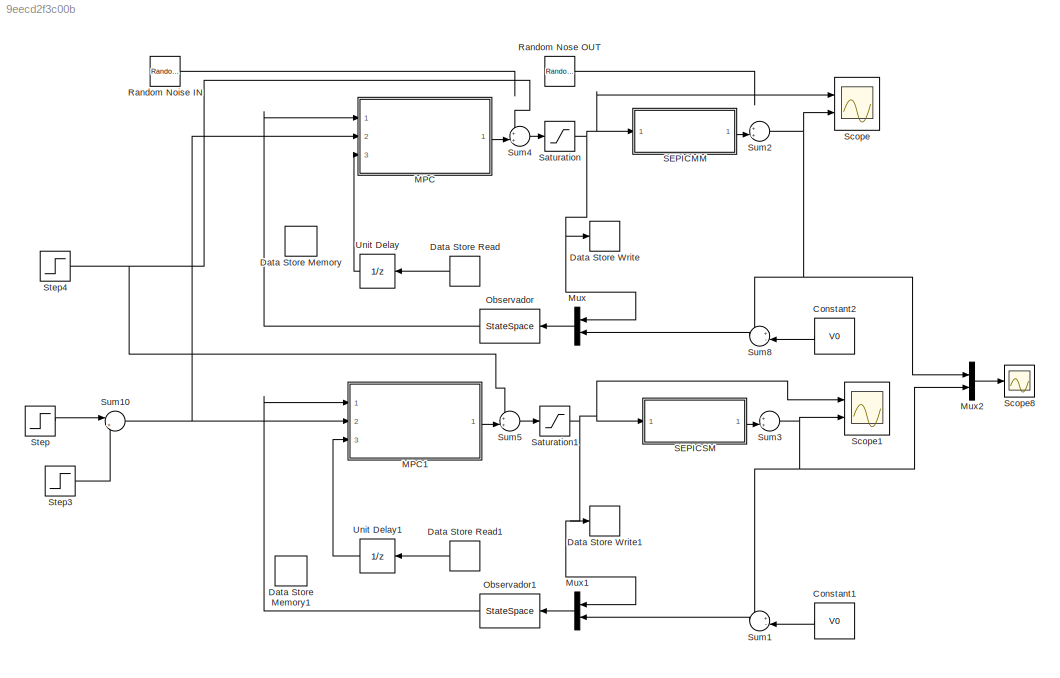
MODEL slx_9eecd2f3c00b
KIND model
CONFIG AbsTol = auto
CONFIG FixedStep = auto
CONFIG MaxStep = auto
CONFIG MinStep = auto
CONFIG RelTol = 1e-3
CONFIG SampleTimeConstraint = Unconstrained
CONFIG Solver = ode45
CONFIG SolverMode = Auto
CONFIG SolverName = ode45
CONFIG StartTime = 0.0
CONFIG StopTime = 0.015
BLOCK [Constant] Constant1
  Value = V0
BLOCK [Constant] Constant2
  Value = V0
BLOCK [DataStoreMemory] Data Store Memory
  DataStoreName = uk
  ReadBeforeWriteMsg = warning
  WriteAfterReadMsg = warning
  WriteAfterWriteMsg = warning
BLOCK [DataStoreMemory] Data Store Memory1
  DataStoreName = uk1
  ReadBeforeWriteMsg = warning
  WriteAfterReadMsg = warning
  WriteAfterWriteMsg = warning
BLOCK [DataStoreRead] Data Store Read
  DataStoreName = uk
  Ports = [0, 1]
BLOCK [DataStoreRead] Data Store Read1
  DataStoreName = uk1
  Ports = [0, 1]
BLOCK [DataStoreWrite] Data Store Write
  DataStoreName = uk
  DialogController = Simulink.DDGSource
  Ports = [1]
BLOCK [DataStoreWrite] Data Store Write1
  DataStoreName = uk1
  Ports = [1]
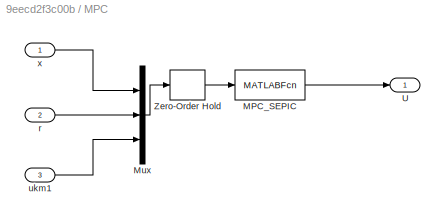
BLOCK [SubSystem] MPC
  Ports = [3, 1]
  RequestExecContextInheritance = off
BLOCK [MATLABFcn] MPC/MPC_SEPIC
  MATLABFcn = MPC_SEPIC
  Ports = [1, 1]
BLOCK [Mux] MPC/Mux
  DisplayOption = bar
  Inputs = 3
  Ports = [3, 1]
BLOCK [Outport] MPC/U
  IconDisplay = Port number
BLOCK [ZeroOrderHold] MPC/Zero-Order Hold
  SampleTime = Ts
BLOCK [Inport] MPC/r
  IconDisplay = Port number
  Port = 2
BLOCK [Inport] MPC/ukm1
  IconDisplay = Port number
  Port = 3
BLOCK [Inport] MPC/x
  IconDisplay = Port number
  PortDimensions = 4
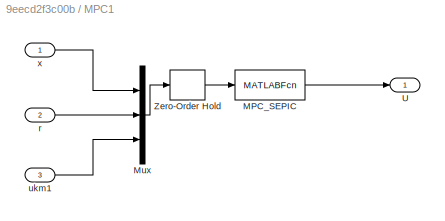
BLOCK [SubSystem] MPC1
  Ports = [3, 1]
  RequestExecContextInheritance = off
BLOCK [MATLABFcn] MPC1/MPC_SEPIC
  MATLABFcn = MPC_SEPIC
  Ports = [1, 1]
BLOCK [Mux] MPC1/Mux
  DisplayOption = bar
  Inputs = 3
  Ports = [3, 1]
BLOCK [Outport] MPC1/U
  IconDisplay = Port number
BLOCK [ZeroOrderHold] MPC1/Zero-Order Hold
  SampleTime = Ts
BLOCK [Inport] MPC1/r
  IconDisplay = Port number
  Port = 2
BLOCK [Inport] MPC1/ukm1
  IconDisplay = Port number
  Port = 3
BLOCK [Inport] MPC1/x
  IconDisplay = Port number
  PortDimensions = 4
BLOCK [Mux] Mux
  DisplayOption = bar
  Inputs = 2
  Ports = [2, 1]
BLOCK [Mux] Mux1
  DisplayOption = bar
  Inputs = 2
  Ports = [2, 1]
BLOCK [Mux] Mux2
  DisplayOption = bar
  Inputs = 2
  Ports = [2, 1]
BLOCK [StateSpace] Observador
  A = Ao
  B = Bo
  C = Co
  D = Do
  Ports = [1, 1]
  X0 = 0
BLOCK [StateSpace] Observador1
  A = Ao
  B = Bo
  C = Co
  D = Do
  Ports = [1, 1]
  X0 = 0
BLOCK [RandomNumber] Random Noise IN
  SampleTime = 0.0001
  Variance = .0001
BLOCK [RandomNumber] Random Nose OUT
  SampleTime = 0.0001
  Variance = 0.001
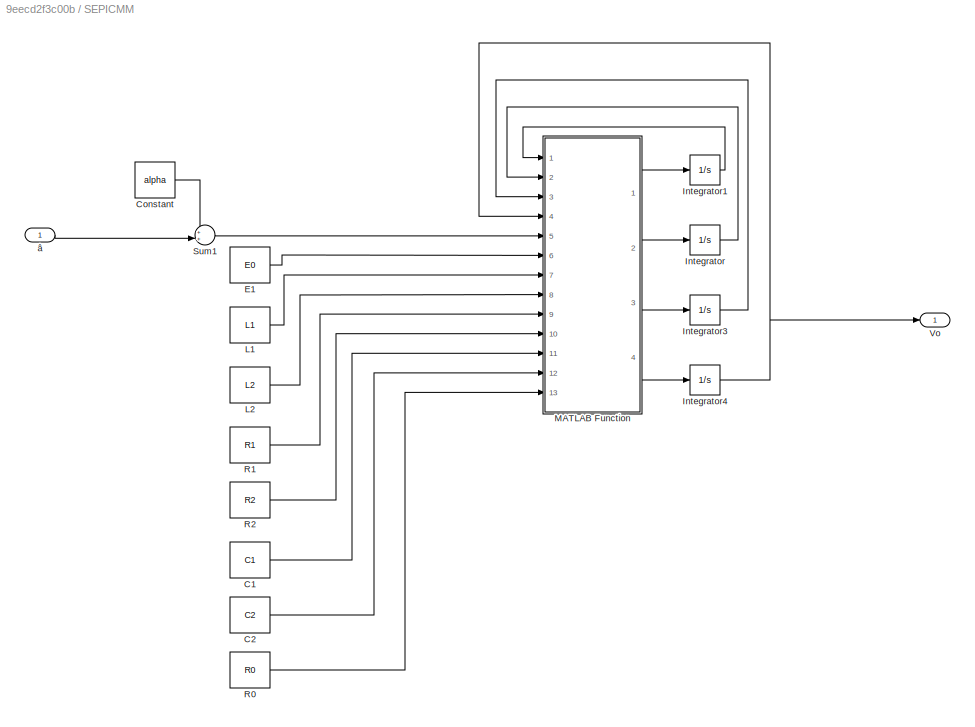
BLOCK [SubSystem] SEPICMM 
  Ports = [1, 1]
  RequestExecContextInheritance = off
BLOCK [Constant] SEPICMM /C1
  Value = C1
BLOCK [Constant] SEPICMM /C2
  Value = C2
BLOCK [Constant] SEPICMM /Constant
  Value = alpha
BLOCK [Constant] SEPICMM /E1
  Value = E0
BLOCK [Integrator] SEPICMM /Integrator
  Ports = [1, 1]
BLOCK [Integrator] SEPICMM /Integrator1
  Ports = [1, 1]
BLOCK [Integrator] SEPICMM /Integrator3
  Ports = [1, 1]
BLOCK [Integrator] SEPICMM /Integrator4
  Ports = [1, 1]
BLOCK [Constant] SEPICMM /L1
  Value = L1
BLOCK [Constant] SEPICMM /L2
  Value = L2
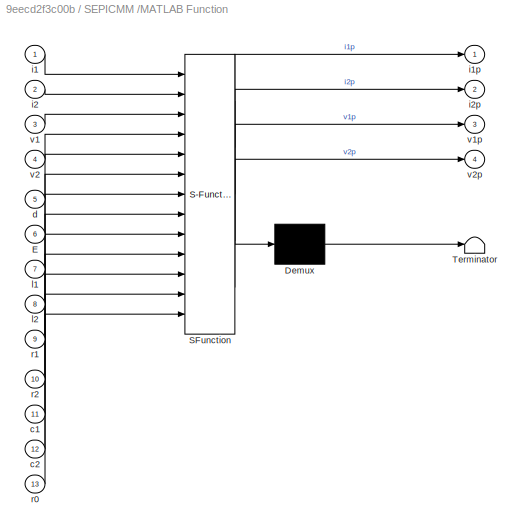
BLOCK [SubSystem] SEPICMM /MATLAB Function
  ErrorFcn = Stateflow.Translate.translate
  PermitHierarchicalResolution = ExplicitOnly
  Ports = [13, 4]
  RequestExecContextInheritance = off
  SFBlockType = MATLAB Function
  TreatAsAtomicUnit = on
BLOCK [Demux] SEPICMM /MATLAB Function/ Demux 
  Outputs = 1
  Ports = [1, 1]
BLOCK [S-Function] SEPICMM /MATLAB Function/ SFunction 
  EnableBusSupport = on
  FunctionName = sf_sfun
  PortCounts = [13 5]
  Ports = [13, 5]
  Tag = Stateflow S-Function MPCii_sepicmm_vs_sepicsm_noise 2
BLOCK [Terminator] SEPICMM /MATLAB Function/ Terminator 
BLOCK [Inport] SEPICMM /MATLAB Function/E
  IconDisplay = Port number
  Port = 6
BLOCK [Inport] SEPICMM /MATLAB Function/c1
  IconDisplay = Port number
  Port = 11
BLOCK [Inport] SEPICMM /MATLAB Function/c2
  IconDisplay = Port number
  Port = 12
BLOCK [Inport] SEPICMM /MATLAB Function/d
  IconDisplay = Port number
  Port = 5
BLOCK [Inport] SEPICMM /MATLAB Function/i1
  IconDisplay = Port number
BLOCK [Outport] SEPICMM /MATLAB Function/i1p
  IconDisplay = Port number
BLOCK [Inport] SEPICMM /MATLAB Function/i2
  IconDisplay = Port number
  Port = 2
BLOCK [Outport] SEPICMM /MATLAB Function/i2p
  IconDisplay = Port number
  Port = 2
BLOCK [Inport] SEPICMM /MATLAB Function/l1
  IconDisplay = Port number
  Port = 7
BLOCK [Inport] SEPICMM /MATLAB Function/l2
  IconDisplay = Port number
  Port = 8
BLOCK [Inport] SEPICMM /MATLAB Function/r0
  IconDisplay = Port number
  Port = 13
BLOCK [Inport] SEPICMM /MATLAB Function/r1
  IconDisplay = Port number
  Port = 9
BLOCK [Inport] SEPICMM /MATLAB Function/r2
  IconDisplay = Port number
  Port = 10
BLOCK [Inport] SEPICMM /MATLAB Function/v1
  IconDisplay = Port number
  Port = 3
BLOCK [Outport] SEPICMM /MATLAB Function/v1p
  IconDisplay = Port number
  Port = 3
BLOCK [Inport] SEPICMM /MATLAB Function/v2
  IconDisplay = Port number
  Port = 4
BLOCK [Outport] SEPICMM /MATLAB Function/v2p
  IconDisplay = Port number
  Port = 4
BLOCK [Constant] SEPICMM /R0
  Value = R0
BLOCK [Constant] SEPICMM /R1
  Value = R1
BLOCK [Constant] SEPICMM /R2
  Value = R2
BLOCK [Sum] SEPICMM /Sum1
  IconShape = round
  InputSameDT = off
  Inputs = ++|
  OutDataTypeStr = Inherit: Inherit via internal rule
  Ports = [2, 1]
  SaturateOnIntegerOverflow = off
BLOCK [Outport] SEPICMM /Vo
  IconDisplay = Port number
BLOCK [Inport] SEPICMM /â
  IconDisplay = Port number
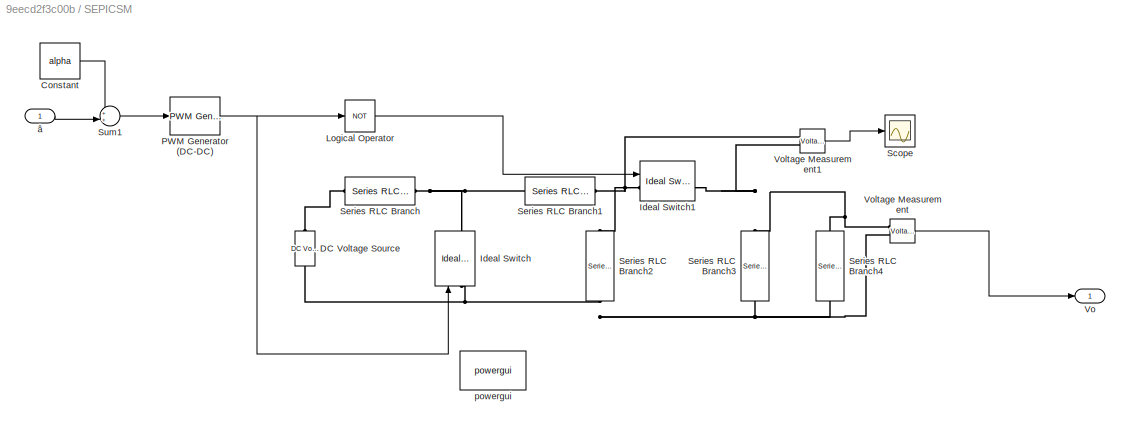
BLOCK [SubSystem] SEPICSM 
  Ports = [1, 1]
  RequestExecContextInheritance = off
BLOCK [Constant] SEPICSM /Constant
  Value = alpha
BLOCK [Reference] SEPICSM /DC Voltage Source  REF=powerlib/Electrical
Sources/DC Voltage Source
  Amplitude = E0
  Measurements = None
  Ports = [0, 0, 0, 0, 0, 1, 1]
  SourceBlock = powerlib/Electrical\nSources/DC Voltage Source
  SourceType = DC Voltage Source
BLOCK [Reference] SEPICSM /Ideal Switch  REF=powerlib/Power
Electronics/Ideal Switch
  Cs = inf
  IC = 0
  Lon = 0
  Measurements = on
  Ports = [1, 1, 0, 0, 0, 1, 1]
  Ron = 0.001
  Rs = 1e5
  SourceBlock = powerlib/Power\nElectronics/Ideal Switch
  SourceType = Ideal Switch
BLOCK [Reference] SEPICSM /Ideal Switch1  REF=powerlib/Power
Electronics/Ideal Switch
  Cs = inf
  IC = 0
  Lon = 0
  Measurements = on
  Ports = [1, 1, 0, 0, 0, 1, 1]
  Ron = 0.001
  Rs = 1e5
  SourceBlock = powerlib/Power\nElectronics/Ideal Switch
  SourceType = Ideal Switch
BLOCK [Logic] SEPICSM /Logical Operator
  AllPortsSameDT = off
  Operator = NOT
  OutDataTypeStr = boolean
  Ports = [1, 1]
BLOCK [Reference] SEPICSM /PWM Generator (DC-DC)  REF=powerlib_meascontrol/Pulse & Signal
Generators/PWM Generator
(DC-DC)
  Fsw = 50000
  Ports = [1, 1]
  SourceBlock = powerlib_meascontrol/Pulse & Signal\nGenerators/PWM Generator\n(DC-DC)
  SourceType = PWM Generator (DC-DC)
  Ts = 0
BLOCK [Scope] SEPICSM /Scope
  Floating = off
  LimitDataPoints = off
  NumInputPorts = 1
  Ports = [1]
  SaveName = ScopeData2
  YMax = -9.23568e-13
  YMin = -9.23568e-13
  ZoomMode = xonly
BLOCK [Reference] SEPICSM /Series RLC Branch  REF=powerlib/Elements/Series RLC Branch
  BranchType = RL
  Capacitance = 1e-6
  Inductance = L1
  InitialCurrent = 0
  InitialVoltage = 0
  LConnTagsString = __new0
  Measurements = None
  Ports = [0, 0, 0, 0, 0, 1, 1]
  RConnTagsString = __new0
  Resistance = R1
  SetiL0 = on
  Setx0 = off
  SourceBlock = powerlib/Elements/Series RLC Branch
  SourceType = Series RLC Branch
BLOCK [Reference] SEPICSM /Series RLC Branch1  REF=powerlib/Elements/Series RLC Branch
  BranchType = C
  Capacitance = C1
  Inductance = L1
  InitialCurrent = 0
  InitialVoltage = 0
  LConnTagsString = __new0
  Measurements = None
  Ports = [0, 0, 0, 0, 0, 1, 1]
  RConnTagsString = __new0
  Resistance = 1
  SetiL0 = off
  Setx0 = on
  SourceBlock = powerlib/Elements/Series RLC Branch
  SourceType = Series RLC Branch
BLOCK [Reference] SEPICSM /Series RLC Branch2  REF=powerlib/Elements/Series RLC Branch
  BranchType = RL
  Capacitance = 1e-6
  Inductance = L2
  InitialCurrent = 0
  InitialVoltage = 0
  LConnTagsString = __new0
  Measurements = None
  Ports = [0, 0, 0, 0, 0, 1, 1]
  RConnTagsString = __new0
  Resistance = R2
  SetiL0 = on
  Setx0 = off
  SourceBlock = powerlib/Elements/Series RLC Branch
  SourceType = Series RLC Branch
BLOCK [Reference] SEPICSM /Series RLC Branch3  REF=powerlib/Elements/Series RLC Branch
  BranchType = C
  Capacitance = C2
  Inductance = L1
  InitialCurrent = 0
  InitialVoltage = 0
  LConnTagsString = __new0
  Measurements = None
  Ports = [0, 0, 0, 0, 0, 1, 1]
  RConnTagsString = __new0
  Resistance = 1
  SetiL0 = off
  Setx0 = on
  SourceBlock = powerlib/Elements/Series RLC Branch
  SourceType = Series RLC Branch
BLOCK [Reference] SEPICSM /Series RLC Branch4  REF=powerlib/Elements/Series RLC Branch
  BranchType = R
  Capacitance = 1e-6
  Inductance = L1
  InitialCurrent = 0
  InitialVoltage = 0
  LConnTagsString = __new0
  Measurements = None
  Ports = [0, 0, 0, 0, 0, 1, 1]
  RConnTagsString = __new0
  Resistance = R0
  SetiL0 = off
  Setx0 = off
  SourceBlock = powerlib/Elements/Series RLC Branch
  SourceType = Series RLC Branch
BLOCK [Sum] SEPICSM /Sum1
  IconShape = round
  InputSameDT = off
  Inputs = ++|
  OutDataTypeStr = Inherit: Inherit via internal rule
  Ports = [2, 1]
  SaturateOnIntegerOverflow = off
BLOCK [Outport] SEPICSM /Vo
  IconDisplay = Port number
BLOCK [Reference] SEPICSM /Voltage Measurement  REF=powerlib/Measurements/Voltage Measurement
  OutputType = Complex
  PSBequivalent = 0
  PhasorSimulation = off
  Ports = [0, 1, 0, 0, 0, 2]
  SourceBlock = powerlib/Measurements/Voltage Measurement
  SourceType = Voltage Measurement
  UserDataPersistent = on
BLOCK [Reference] SEPICSM /Voltage Measurement1  REF=powerlib/Measurements/Voltage Measurement
  OutputType = Complex
  PSBequivalent = 0
  PhasorSimulation = off
  Ports = [0, 1, 0, 0, 0, 2]
  SourceBlock = powerlib/Measurements/Voltage Measurement
  SourceType = Voltage Measurement
  UserDataPersistent = on
BLOCK [Reference] SEPICSM /powergui  REF=powerlib/powergui
  DisableRonSwitches = off
  DisableSnubberDevices = off
  DisableVfSwitches = off
  DisplayEquations = off
  DisplayStyle = 1
  EnableUseOfTLC = off
  ErrMax = 1e-4
  Frange = [0:2:500]
  FreqAxis = off
  FunctionMessages = off
  HookPort = off
  Interpol = off
  Iterations = 50
  MaxFrequency = 1000
  Pbase = 100e6
  Ports = []
  Priority = 1
  ResistiveCurrentMeasurement = off
  RestoreLinks = warning
  RmsSteady = 1
  SPID = off
  SampleTime = 50e-6
  ShowGrid = off
  SolverType = Tustin
  SourceBlock = powerlib/powergui
  SourceType = PSB option menu block
  StartTime = 0.0
  SwTol = 0
  Ts = 0
  UnitsV = kV
  UnitsW = MW
  UserDataPersistent = on
  Xlog = on
  Ylog = off
  ZoomFFT = off
  buscounter = 0
  cycles = 1
  display = off
  echomessages = off
  frequency = 60
  frequencyindice = 0
  frequencyindicesteady = 1
  fundamental = 60
  methode = off
  save = off
  structure = 0
  variable = ZData
  x0status = blocks
BLOCK [Inport] SEPICSM /â
  IconDisplay = Port number
BLOCK [Saturate] Saturation
  InputPortMap = u0
  LowerLimit = 0.5-alpha
  Ports = [1, 1]
  UpperLimit = 1-alpha
BLOCK [Saturate] Saturation1
  InputPortMap = u0
  LowerLimit = 0.5-alpha
  Ports = [1, 1]
  UpperLimit = 1-alpha
BLOCK [Scope] Scope
  Floating = off
  LimitDataPoints = off
  NumInputPorts = 2
  Ports = [2]
  TimeRange = 0.015
  YMax = 0.50976~0.07
  YMin = 0.461212~-0.06
BLOCK [Scope] Scope1
  Floating = off
  LimitDataPoints = off
  NumInputPorts = 2
  Ports = [2]
  SaveName = ScopeData1
  TimeRange = 0.015
  YMax = 0.14~24.8025
  YMin = -0.02~24.76
  ZoomMode = yonly
BLOCK [Scope] Scope8
  DataFormat = StructureWithTime
  Floating = off
  LimitDataPoints = off
  NumInputPorts = 1
  Ports = [1]
  SaveName = mpc_output_sm_vs_mm
  SaveToWorkspace = on
  TimeRange = 0.0005456720142856314
  YMax = 15
  YMin = 14.35
BLOCK [Step] Step
  After = -1
  SampleTime = 0
  Time = 0.01
BLOCK [Step] Step3
  After = 5
  SampleTime = 0
  Time = 0.013
BLOCK [Step] Step4
  After = 0.03
  SampleTime = 0
  Time = 0.0075
BLOCK [Sum] Sum1
  IconShape = round
  InputSameDT = off
  Inputs = +-|
  OutDataTypeStr = Inherit: Inherit via internal rule
  Ports = [2, 1]
  SaturateOnIntegerOverflow = off
BLOCK [Sum] Sum10
  IconShape = round
  InputSameDT = off
  Inputs = |++
  OutDataTypeStr = Inherit: Inherit via internal rule
  Ports = [2, 1]
  SaturateOnIntegerOverflow = off
BLOCK [Sum] Sum2
  IconShape = round
  InputSameDT = off
  Inputs = ++|
  OutDataTypeStr = Inherit: Inherit via internal rule
  Ports = [2, 1]
  SaturateOnIntegerOverflow = off
BLOCK [Sum] Sum3
  IconShape = round
  InputSameDT = off
  Inputs = ++|
  OutDataTypeStr = Inherit: Inherit via internal rule
  Ports = [2, 1]
  SaturateOnIntegerOverflow = off
BLOCK [Sum] Sum4
  IconShape = round
  InputSameDT = off
  Inputs = ++|
  OutDataTypeStr = Inherit: Inherit via internal rule
  Ports = [2, 1]
  SaturateOnIntegerOverflow = off
BLOCK [Sum] Sum5
  IconShape = round
  InputSameDT = off
  Inputs = ++|
  OutDataTypeStr = Inherit: Inherit via internal rule
  Ports = [2, 1]
  SaturateOnIntegerOverflow = off
BLOCK [Sum] Sum8
  IconShape = round
  InputSameDT = off
  Inputs = +-|
  OutDataTypeStr = Inherit: Inherit via internal rule
  Ports = [2, 1]
  SaturateOnIntegerOverflow = off
BLOCK [UnitDelay] Unit Delay
  InputProcessing = Elements as channels (sample based)
  SampleTime = -1
BLOCK [UnitDelay] Unit Delay1
  InputProcessing = Elements as channels (sample based)
  SampleTime = -1
LINE Constant1:1 -> Sum1:2
LINE Constant2:1 -> Sum8:2
LINE Data Store Read1:1 -> Unit Delay1:1
LINE Data Store Read:1 -> Unit Delay:1
LINE MPC/MPC_SEPIC:1 -> MPC/U:1
LINE MPC/Mux:1 -> MPC/Zero-Order Hold:1
LINE MPC/Zero-Order Hold:1 -> MPC/MPC_SEPIC:1
LINE MPC/r:1 -> MPC/Mux:2
LINE MPC/ukm1:1 -> MPC/Mux:3
LINE MPC/x:1 -> MPC/Mux:1
LINE MPC1/MPC_SEPIC:1 -> MPC1/U:1
LINE MPC1/Mux:1 -> MPC1/Zero-Order Hold:1
LINE MPC1/Zero-Order Hold:1 -> MPC1/MPC_SEPIC:1
LINE MPC1/r:1 -> MPC1/Mux:2
LINE MPC1/ukm1:1 -> MPC1/Mux:3
LINE MPC1/x:1 -> MPC1/Mux:1
LINE MPC1:1 -> Sum5:2
LINE MPC:1 -> Sum4:2
LINE Mux1:1 -> Observador1:1
LINE Mux2:1 -> Scope8:1
LINE Mux:1 -> Observador:1
LINE Observador1:1 -> MPC1:1
LINE Observador:1 -> MPC:1
LINE SEPICMM /C1:1 -> SEPICMM /MATLAB Function:11
LINE SEPICMM /C2:1 -> SEPICMM /MATLAB Function:12
LINE SEPICMM /Constant:1 -> SEPICMM /Sum1:1
LINE SEPICMM /E1:1 -> SEPICMM /MATLAB Function:6
LINE SEPICMM /Integrator1:1 -> SEPICMM /MATLAB Function:1
LINE SEPICMM /Integrator3:1 -> SEPICMM /MATLAB Function:3
NET SEPICMM /Integrator4:1 -> SEPICMM /MATLAB Function:4, SEPICMM /Vo:1
LINE SEPICMM /Integrator:1 -> SEPICMM /MATLAB Function:2
LINE SEPICMM /L1:1 -> SEPICMM /MATLAB Function:7
LINE SEPICMM /L2:1 -> SEPICMM /MATLAB Function:8
LINE SEPICMM /MATLAB Function:1 -> SEPICMM /Integrator1:1
LINE SEPICMM /MATLAB Function:2 -> SEPICMM /Integrator:1
LINE SEPICMM /MATLAB Function:3 -> SEPICMM /Integrator3:1
LINE SEPICMM /MATLAB Function:4 -> SEPICMM /Integrator4:1
LINE SEPICMM /R0:1 -> SEPICMM /MATLAB Function:13
LINE SEPICMM /R1:1 -> SEPICMM /MATLAB Function:9
LINE SEPICMM /R2:1 -> SEPICMM /MATLAB Function:10
LINE SEPICMM /Sum1:1 -> SEPICMM /MATLAB Function:5
LINE SEPICMM /â:1 -> SEPICMM /Sum1:2
LINE SEPICMM :1 -> Sum2:2
LINE SEPICSM /Constant:1 -> SEPICSM /Sum1:1
LINE SEPICSM /Logical Operator:1 -> SEPICSM /Ideal Switch1:1
NET SEPICSM /PWM Generator (DC-DC):1 -> SEPICSM /Ideal Switch:1, SEPICSM /Logical Operator:1
LINE SEPICSM /Sum1:1 -> SEPICSM /PWM Generator (DC-DC):1
LINE SEPICSM /Voltage Measurement1:1 -> SEPICSM /Scope:1
LINE SEPICSM /Voltage Measurement:1 -> SEPICSM /Vo:1
LINE SEPICSM /â:1 -> SEPICSM /Sum1:2
LINE SEPICSM :1 -> Sum3:2
NET Saturation1:1 -> Data Store Write1:1, Mux1:1, SEPICSM :1, Scope1:1
NET Saturation:1 -> Data Store Write:1, Mux:1, SEPICMM :1, Scope:1
LINE Step3:1 -> Sum10:2
NET Step4:1 -> Sum4:1, Sum5:1
LINE Step:1 -> Sum10:1
NET Sum10:1 -> MPC1:2, MPC:2
LINE Sum1:1 -> Mux1:2
NET Sum2:1 -> Mux2:1, Scope:2, Sum8:1
NET Sum3:1 -> Mux2:2, Scope1:2, Sum1:1
LINE Sum4:1 -> Saturation:1
LINE Sum5:1 -> Saturation1:1
LINE Sum8:1 -> Mux:2
LINE Unit Delay1:1 -> MPC1:3
LINE Unit Delay:1 -> MPC:3
PNET net1: SEPICSM /DC Voltage Source:LConn1 -- SEPICSM /Ideal Switch:LConn1 -- SEPICSM /Series RLC Branch2:LConn1 -- SEPICSM /Series RLC Branch3:RConn1 -- SEPICSM /Series RLC Branch4:RConn1 -- SEPICSM /Voltage Measurement:LConn2
PLINE SEPICSM /DC Voltage Source:RConn1 -- SEPICSM /Series RLC Branch:LConn1
PNET net2: SEPICSM /Ideal Switch1:LConn1 -- SEPICSM /Series RLC Branch1:RConn1 -- SEPICSM /Series RLC Branch2:RConn1 -- SEPICSM /Voltage Measurement1:LConn1
PNET net3: SEPICSM /Ideal Switch1:RConn1 -- SEPICSM /Series RLC Branch3:LConn1 -- SEPICSM /Series RLC Branch4:LConn1 -- SEPICSM /Voltage Measurement1:LConn2 -- SEPICSM /Voltage Measurement:LConn1
PNET net4: SEPICSM /Ideal Switch:RConn1 -- SEPICSM /Series RLC Branch1:LConn1 -- SEPICSM /Series RLC Branch:RConn1
note: NET lines group one-source signal fan-out (src -> all destinations, sorted); 1:1 wires keep LINE; PNET lines group multi-terminal physical nets as a canonical sorted terminal list (undirected conserving connections); 2-terminal nets keep the pairwise PLINE form
CHART SEPICMM
/MATLAB Function states=1 transitions=1
  STATE_LABEL 'eML_blk_kernel()'
  STATE_LABEL 'SCRIPT:\nfunction [i1p,i2p,v1p,v2p]  = fcn(i1,i2,v1,v2,d,E,l1,l2,r1,r2,c1,c2,r0)\n%#codegen\ni1p=(E-i1*r1-(1-d)*(v1+v2))/l1;\ni2p=(-v1*d+(1-d)*v2-i2*r2)/l2;\nv1p=(i2*d+i1*(1-d))/c1;\nv2p=(-v2/r0+(1-d)*(i1-i2))/c2;\n'
